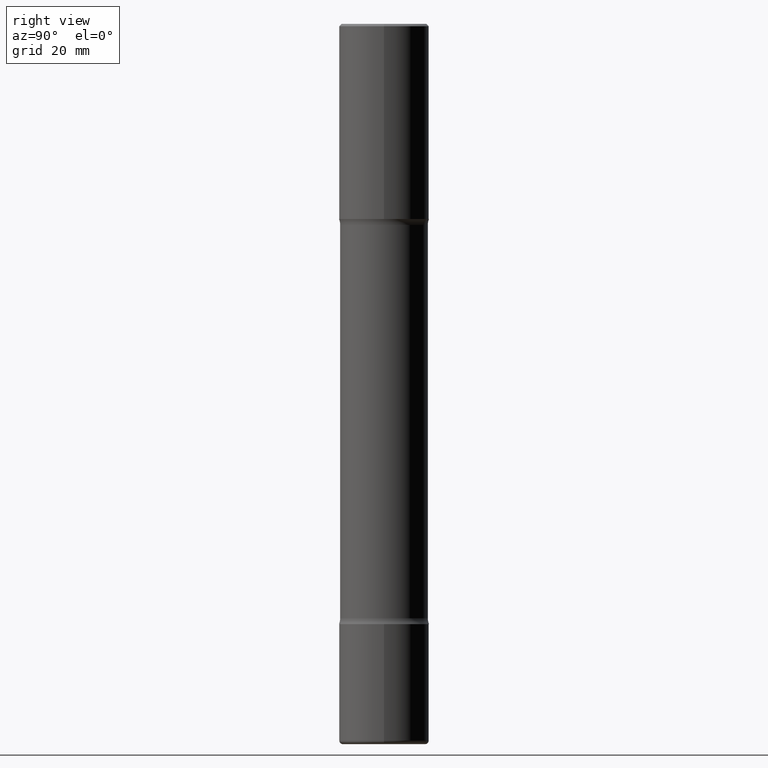
[diagram: clean part render]
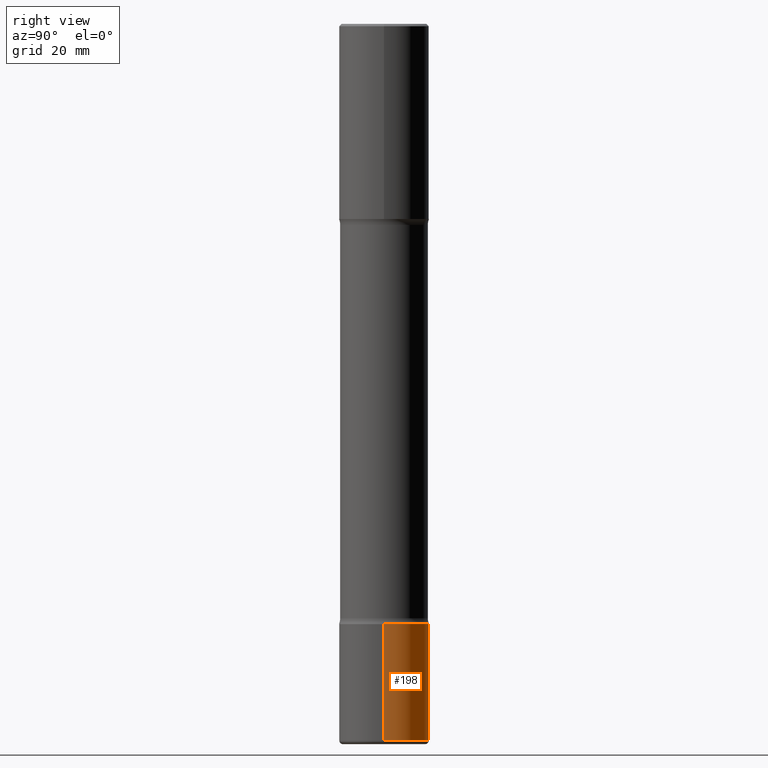
[diagram: same view with one face highlighted and labeled with its STEP entity id]
A machine part, right view. The second image highlights one B-rep face of the part: STEP entity #198.
In plain terms, the highlighted cylindrical surface (partial cylindrical patch) has radius 9.525 mm, axis along (-0, 0, 1).
Its self-contained STEP definition (entity closure, byte-faithful):
#28 = CARTESIAN_POINT ( 'NONE',  ( 0.000000000000000000, 0.000000000000000000, 0.000000000000000000 ) ) ;
#36 = CARTESIAN_POINT ( 'NONE',  ( 1.459944877292526494E-28, -2.084414359289357934E-14, -5.969999999999999751 ) ) ;
#40 = CARTESIAN_POINT ( 'NONE',  ( -0.3750000000000002220, 2.664535259100377275E-15, -1.844600658845590719E-29 ) ) ;
#45 = EDGE_CURVE ( 'NONE', #286, #310, #140, .T. ) ;
#59 = AXIS2_PLACEMENT_3D ( 'NONE', #36, #555, #87 ) ;
#66 = EDGE_CURVE ( 'NONE', #310, #463, #348, .T. ) ;
#76 = AXIS2_PLACEMENT_3D ( 'NONE', #28, #452, #205 ) ;
#77 = CIRCLE ( 'NONE', #59, 0.3750000000000001665 ) ;
#87 = DIRECTION ( 'NONE',  ( 1.000000000000000000, -6.982962677686269866E-15, 0.000000000000000000 ) ) ;
#95 = ORIENTED_EDGE ( 'NONE', *, *, #425, .T. ) ;
#103 = DIRECTION ( 'NONE',  ( -2.445468806185136597E-29, 3.491481338843145583E-15, 1.000000000000000000 ) ) ;
#139 = CARTESIAN_POINT ( 'NONE',  ( 0.3750000000000002220, -2.618611004132351594E-15, 1.828566290923477043E-29 ) ) ;
#140 = LINE ( 'NONE', #139, #503 ) ;
#167 = FACE_OUTER_BOUND ( 'NONE', #221, .T. ) ;
#174 = CARTESIAN_POINT ( 'NONE',  ( -0.3750000000000002220, -1.648623988445427734E-14, -5.000000000000000000 ) ) ;
#180 = DIRECTION ( 'NONE',  ( -2.445468806185136877E-29, 3.491481338843145188E-15, 1.000000000000000000 ) ) ;
#198 = ADVANCED_FACE ( 'NONE', ( #167 ), #413, .T. ) ;
#205 = DIRECTION ( 'NONE',  ( 1.000000000000000000, -6.982962677686266711E-15, 4.876176775795935793E-29 ) ) ;
#211 = VECTOR ( 'NONE', #220, 39.37007874015748143 ) ;
#217 = LINE ( 'NONE', #40, #211 ) ;
#220 = DIRECTION ( 'NONE',  ( -2.445468806185136877E-29, 3.491481338843145188E-15, 1.000000000000000000 ) ) ;
#221 = EDGE_LOOP ( 'NONE', ( #226, #95, #388, #529 ) ) ;
#226 = ORIENTED_EDGE ( 'NONE', *, *, #371, .T. ) ;
#229 = DIRECTION ( 'NONE',  ( 1.000000000000000000, -6.982962677686263555E-15, 0.000000000000000000 ) ) ;
#242 = CARTESIAN_POINT ( 'NONE',  ( -0.3750000000000002776, -1.817960833379319733E-14, -5.969999999999999751 ) ) ;
#250 = VERTEX_POINT ( 'NONE', #242 ) ;
#279 = AXIS2_PLACEMENT_3D ( 'NONE', #311, #103, #229 ) ;
#286 = VERTEX_POINT ( 'NONE', #292 ) ;
#292 = CARTESIAN_POINT ( 'NONE',  ( 0.3750000000000002776, -2.346275459702592935E-14, -5.969999999999999751 ) ) ;
#310 = VERTEX_POINT ( 'NONE', #516 ) ;
#311 = CARTESIAN_POINT ( 'NONE',  ( 1.222734403092568523E-28, -1.745740669421572989E-14, -5.000000000000000000 ) ) ;
#348 = CIRCLE ( 'NONE', #279, 0.3750000000000002220 ) ;
#371 = EDGE_CURVE ( 'NONE', #286, #250, #77, .T. ) ;
#388 = ORIENTED_EDGE ( 'NONE', *, *, #66, .F. ) ;
#413 = CYLINDRICAL_SURFACE ( 'NONE', #76, 0.3750000000000002220 ) ;
#425 = EDGE_CURVE ( 'NONE', #250, #463, #217, .T. ) ;
#452 = DIRECTION ( 'NONE',  ( -2.445468806185136597E-29, 3.491481338843145583E-15, 1.000000000000000000 ) ) ;
#463 = VERTEX_POINT ( 'NONE', #174 ) ;
#503 = VECTOR ( 'NONE', #180, 39.37007874015748143 ) ;
#516 = CARTESIAN_POINT ( 'NONE',  ( 0.3750000000000002220, -2.007601769834807990E-14, -5.000000000000000000 ) ) ;
#529 = ORIENTED_EDGE ( 'NONE', *, *, #45, .F. ) ;
#555 = DIRECTION ( 'NONE',  ( -2.445468806185136597E-29, 3.491481338843145583E-15, 1.000000000000000000 ) ) ;